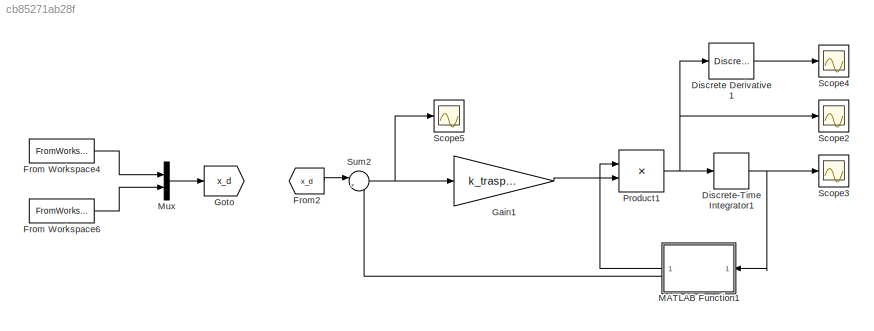
MODEL slx_cb85271ab28f
KIND model
CONFIG AbsTol = auto
CONFIG EnableMultiTasking = off
CONFIG FixedStep = auto
CONFIG MaxStep = auto
CONFIG MinStep = auto
CONFIG RelTol = 1e-3
CONFIG SampleTimeConstraint = Unconstrained
CONFIG SolverName = VariableStepAuto
CONFIG StartTime = 0.0
CONFIG StopTime = 40
BLOCK [Reference] Discrete Derivative1  REF=simulink/Discrete/Discrete Derivative
  SourceBlock = simulink/Discrete/Discrete Derivative
  SourceType = Discrete Derivative
BLOCK [DiscreteIntegrator] Discrete-Time Integrator1
  ICPrevOutput = DiscIntNeverNeededParam
  ICPrevScaledInput = DiscIntNeverNeededParam
  InitialCondition = [theta1_0 theta2_0 -0.25 0]'
  InitialConditionSetting = Auto
  SampleTime = -1
BLOCK [FromWorkspace] From Workspace4
  SampleTime = T
  VariableName = p_d
BLOCK [FromWorkspace] From Workspace6
  SampleTime = T
  VariableName = phi_d
BLOCK [From] From2
  GotoTag = x_d
BLOCK [Gain] Gain1
  Gain = k_trasposta
BLOCK [Goto] Goto
  GotoTag = x_d
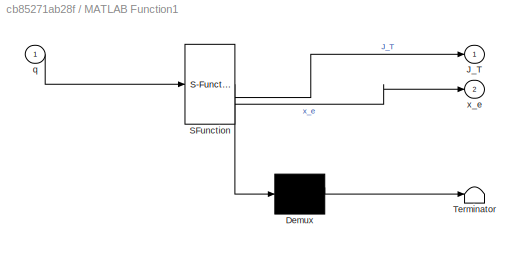
BLOCK [SubSystem] MATLAB Function1
  ErrorFcn = Stateflow.Translate.translate
  LibrarySourceBlock = simulink/User-Defined\nFunctions/MATLAB Function
  NameLocation = top
  PermitHierarchicalResolution = ExplicitOnly
  SFBlockType = MATLAB Function
  TreatAsAtomicUnit = on
BLOCK [Demux] MATLAB Function1/ Demux 
  Outputs = 1
BLOCK [S-Function] MATLAB Function1/ SFunction 
  EnableBusSupport = on
  FunctionName = sf_sfun
  PortCounts = [1 3]
  SFcnIsStateOwnerBlock = off
  SFunctionDeploymentMode = off
  Tag = Stateflow S-Function 1
BLOCK [Terminator] MATLAB Function1/ Terminator 
BLOCK [Outport] MATLAB Function1/J_T
BLOCK [Inport] MATLAB Function1/q
BLOCK [Outport] MATLAB Function1/x_e
  Port = 2
BLOCK [Mux] Mux
  DisplayOption = bar
  Inputs = 2
BLOCK [Product] Product1
  Multiplication = Matrix(*)
BLOCK [Scope] Scope2
  Floating = off
  NumInputPorts = 1
  ScopeSpecificationString = Simulink.scopes.TimeScopeBlockCfg('CurrentConfiguration', extmgr.ConfigurationSet(extmgr.Configuration('Core','General UI',true),extmgr.Configuration('Core','Source UI',true),extmgr.Configuration('Sources','WiredSimulink',true,'DataLoggingVariableName','ScopeData1'),extmgr.Configuration('Visuals','Time Domain',true,'SerializedDisplays',{struct('MinYLimReal','-0.81605','MaxYLimReal','1.45384','YLab...<+1446ch>
BLOCK [Scope] Scope3
  Floating = off
  NumInputPorts = 1
  ScopeSpecificationString = Simulink.scopes.TimeScopeBlockCfg('CurrentConfiguration', extmgr.ConfigurationSet(extmgr.Configuration('Core','General UI',true),extmgr.Configuration('Core','Source UI',true),extmgr.Configuration('Sources','WiredSimulink',true,'DataLoggingVariableName','ScopeData2'),extmgr.Configuration('Visuals','Time Domain',true,'SerializedDisplays',{struct('MinYLimReal','-2.18154','MaxYLimReal','8.16602','YLab...<+1520ch>
BLOCK [Scope] Scope4
  Floating = off
  NumInputPorts = 1
  ScopeSpecificationString = Simulink.scopes.TimeScopeBlockCfg('CurrentConfiguration', extmgr.ConfigurationSet(extmgr.Configuration('Core','General UI',true),extmgr.Configuration('Core','Source UI',true),extmgr.Configuration('Sources','WiredSimulink',true,'DataLoggingVariableName','ScopeData3'),extmgr.Configuration('Visuals','Time Domain',true,'SerializedDisplays',{struct('MinYLimReal','-1.34086','MaxYLimReal','1.80113','YLab...<+1500ch>
BLOCK [Scope] Scope5
  Floating = off
  NumInputPorts = 1
  ScopeSpecificationString = Simulink.scopes.TimeScopeBlockCfg('CurrentConfiguration', extmgr.ConfigurationSet(extmgr.Configuration('Core','General UI',true),extmgr.Configuration('Core','Source UI',true),extmgr.Configuration('Sources','WiredSimulink',true,'DataLoggingVariableName','ScopeData4'),extmgr.Configuration('Visuals','Time Domain',true,'SerializedDisplays',{struct('MinYLimReal','-0.00946','MaxYLimReal','0.01211','YLab...<+1436ch>
BLOCK [Sum] Sum2
  Inputs = |+-
LINE Discrete Derivative1:1 -> Scope4:1
NET Discrete-Time Integrator1:1 -> MATLAB Function1:1, Scope3:1
LINE From Workspace4:1 -> Mux:1
LINE From Workspace6:1 -> Mux:2
LINE From2:1 -> Sum2:1
LINE Gain1:1 -> Product1:2
LINE MATLAB Function1:1 -> Product1:1
LINE MATLAB Function1:2 -> Sum2:2
LINE Mux:1 -> Goto:1
NET Product1:1 -> Discrete Derivative1:1, Discrete-Time Integrator1:1, Scope2:1
NET Sum2:1 -> Gain1:1, Scope5:1
note: NET lines group one-source signal fan-out (src -> all destinations, sorted); 1:1 wires keep LINE
CHART MATLAB Function1 states=1 transitions=1
  STATE_LABEL 'eML_blk_kernel()'
  STATE_LABEL 'SCRIPT:\nfunction [J_T,x_e] = kin(q)\n\n    q1 = q(1); q2 = q(2); q3 = q(3); q4 = q(4);\n\n    J = [- sin(q1)/2 - (cos(q1)*sin(q2))/2 - (cos(q2)*sin(q1))/2, - (cos(q1)*sin(q2))/2 - (cos(q2)*sin(q1))/2, 0, 0;\n           cos(q1)/2 + (cos(q1)*cos(q2))/2 - (sin(q1)*sin(q2))/2,   (cos(q1)*cos(q2))/2 - (sin(q1)*sin(q2))/2, 0, 0;\n                                                               0,               ...<+427ch>'
CHART  states=0 transitions=0
